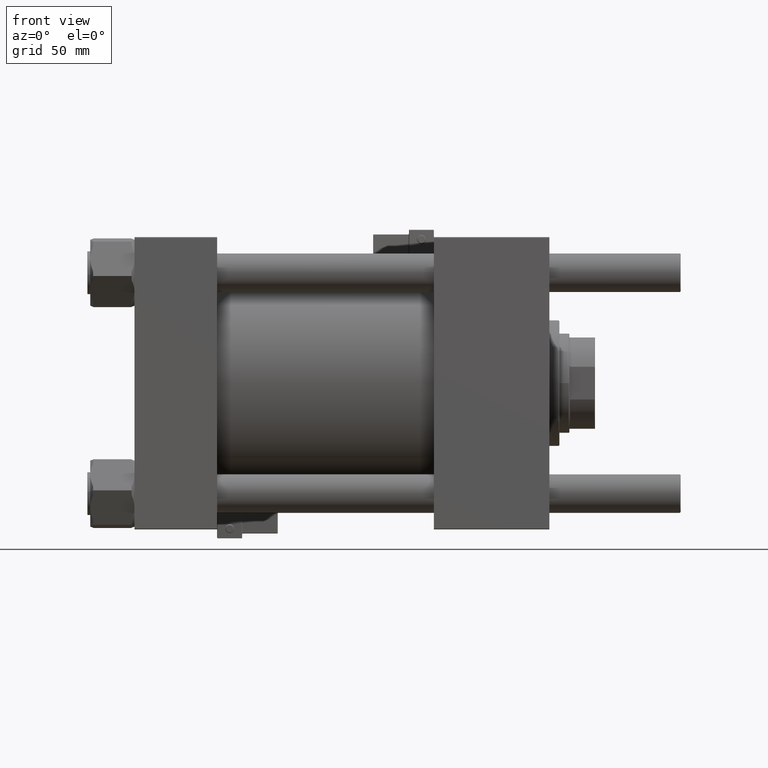
[diagram: clean part render]
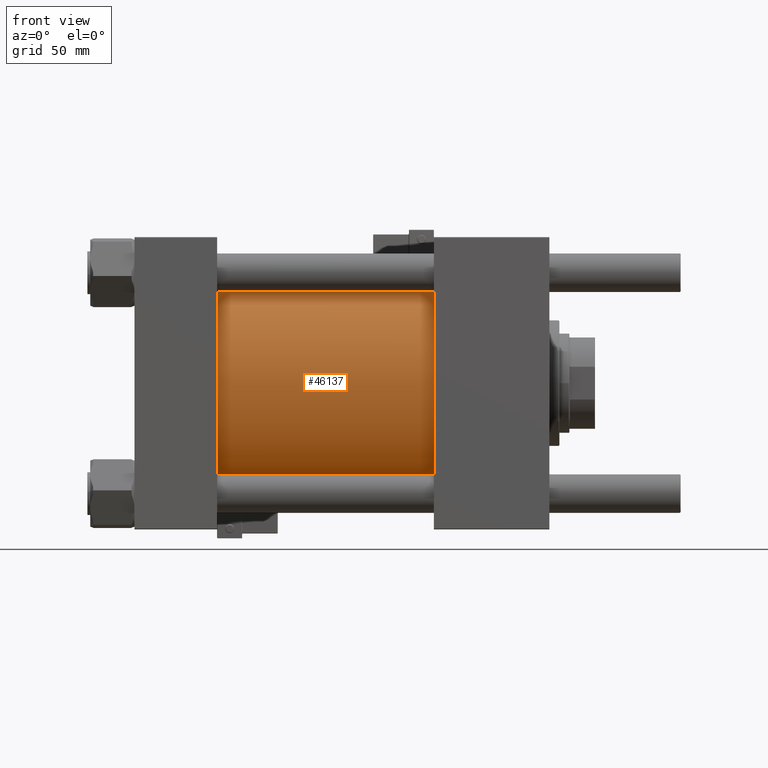
[diagram: same view with one face highlighted and labeled with its STEP entity id]
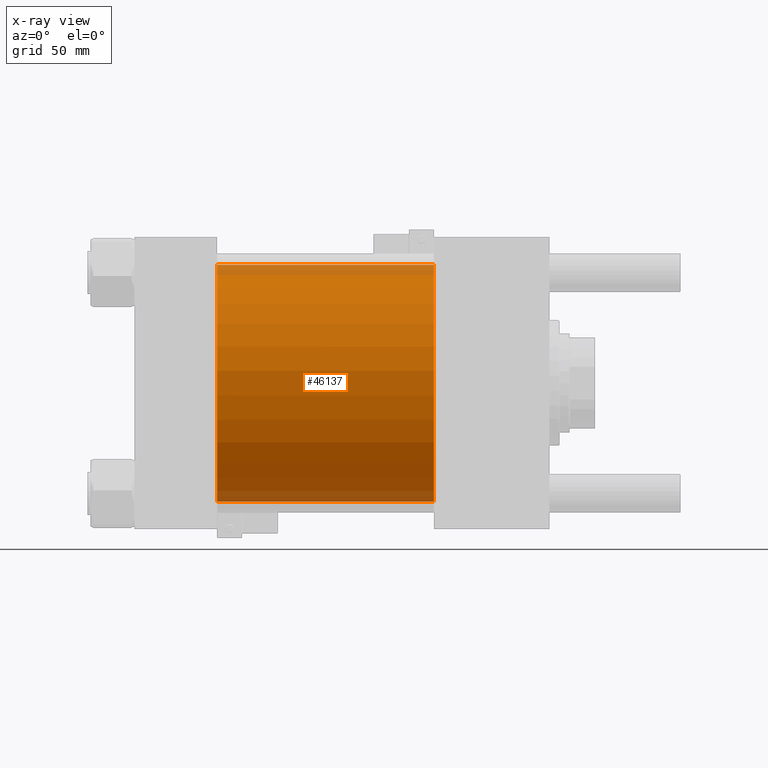
[diagram: x-ray of the same camera — body ghosted, the highlighted face saturated]
A machine part, front view. The second image highlights one B-rep face of the part: STEP entity #46137.
The next image is the same camera in x-ray: the body ghosted, the highlighted face saturated — about 9% of this face is hidden behind the body in this view.
In plain terms, the highlighted cylindrical surface (partial cylindrical patch) has radius 83 mm, axis along (-1, -0, -0).
Its self-contained STEP definition (entity closure, byte-faithful):
#2098 = CARTESIAN_POINT ( 'NONE',  ( 57.99999999999999289, 7.562483218957820855E-15, -83.00000000000000000 ) ) ;
#2549 = DIRECTION ( 'NONE',  ( 0.000000000000000000, 0.000000000000000000, 1.000000000000000000 ) ) ;
#3039 = DIRECTION ( 'NONE',  ( 0.000000000000000000, 0.000000000000000000, -1.000000000000000000 ) ) ;
#7145 = CARTESIAN_POINT ( 'NONE',  ( 210.0000000000000000, -2.602085213965210642E-15, 0.000000000000000000 ) ) ;
#8513 = LINE ( 'NONE', #50682, #58319 ) ;
#8572 = DIRECTION ( 'NONE',  ( 0.000000000000000000, 0.000000000000000000, 1.000000000000000000 ) ) ;
#9693 = DIRECTION ( 'NONE',  ( -1.000000000000000000, -0.000000000000000000, -0.000000000000000000 ) ) ;
#11684 = DIRECTION ( 'NONE',  ( -1.000000000000000000, -0.000000000000000000, -0.000000000000000000 ) ) ;
#12970 = DIRECTION ( 'NONE',  ( 1.000000000000000000, 0.000000000000000000, 0.000000000000000000 ) ) ;
#13893 = EDGE_CURVE ( 'NONE', #53934, #34024, #14394, .T. ) ;
#14203 = ORIENTED_EDGE ( 'NONE', *, *, #25273, .F. ) ;
#14394 = CIRCLE ( 'NONE', #24992, 83.00000000000000000 ) ;
#15187 = AXIS2_PLACEMENT_3D ( 'NONE', #43841, #53469, #2549 ) ;
#15906 = CYLINDRICAL_SURFACE ( 'NONE', #27622, 83.00000000000000000 ) ;
#17454 = EDGE_LOOP ( 'NONE', ( #14203, #18437, #38879, #37454 ) ) ;
#18437 = ORIENTED_EDGE ( 'NONE', *, *, #13893, .F. ) ;
#21399 = VERTEX_POINT ( 'NONE', #2098 ) ;
#21498 = VECTOR ( 'NONE', #9693, 1000.000000000000000 ) ;
#23880 = CARTESIAN_POINT ( 'NONE',  ( 210.0000000000000000, 7.562483218957820855E-15, -83.00000000000000000 ) ) ;
#24992 = AXIS2_PLACEMENT_3D ( 'NONE', #35869, #12970, #3039 ) ;
#25273 = EDGE_CURVE ( 'NONE', #34024, #21399, #38622, .T. ) ;
#27622 = AXIS2_PLACEMENT_3D ( 'NONE', #7145, #11684, #8572 ) ;
#28055 = CARTESIAN_POINT ( 'NONE',  ( 210.0000000000000000, 7.562483218957820855E-15, -83.00000000000000000 ) ) ;
#34024 = VERTEX_POINT ( 'NONE', #23880 ) ;
#35869 = CARTESIAN_POINT ( 'NONE',  ( 210.0000000000000000, -2.602085213965210642E-15, 0.000000000000000000 ) ) ;
#37454 = ORIENTED_EDGE ( 'NONE', *, *, #42627, .T. ) ;
#38622 = LINE ( 'NONE', #28055, #21498 ) ;
#38879 = ORIENTED_EDGE ( 'NONE', *, *, #39126, .T. ) ;
#39126 = EDGE_CURVE ( 'NONE', #53934, #56164, #8513, .T. ) ;
#39855 = CARTESIAN_POINT ( 'NONE',  ( 210.0000000000000000, -2.602085213965210642E-15, 83.00000000000000000 ) ) ;
#40519 = FACE_OUTER_BOUND ( 'NONE', #17454, .T. ) ;
#42627 = EDGE_CURVE ( 'NONE', #56164, #21399, #47881, .T. ) ;
#43841 = CARTESIAN_POINT ( 'NONE',  ( 57.99999999999999289, -2.602085213965210642E-15, 0.000000000000000000 ) ) ;
#45278 = DIRECTION ( 'NONE',  ( -1.000000000000000000, -0.000000000000000000, -0.000000000000000000 ) ) ;
#46137 = ADVANCED_FACE ( 'NONE', ( #40519 ), #15906, .T. ) ;
#47881 = CIRCLE ( 'NONE', #15187, 83.00000000000000000 ) ;
#50682 = CARTESIAN_POINT ( 'NONE',  ( 210.0000000000000000, -2.602085213965210642E-15, 83.00000000000000000 ) ) ;
#53469 = DIRECTION ( 'NONE',  ( 1.000000000000000000, -0.000000000000000000, -0.000000000000000000 ) ) ;
#53934 = VERTEX_POINT ( 'NONE', #39855 ) ;
#54245 = CARTESIAN_POINT ( 'NONE',  ( 57.99999999999999289, -2.602085213965210642E-15, 83.00000000000000000 ) ) ;
#56164 = VERTEX_POINT ( 'NONE', #54245 ) ;
#58319 = VECTOR ( 'NONE', #45278, 1000.000000000000000 ) ;